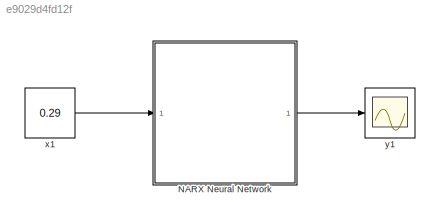
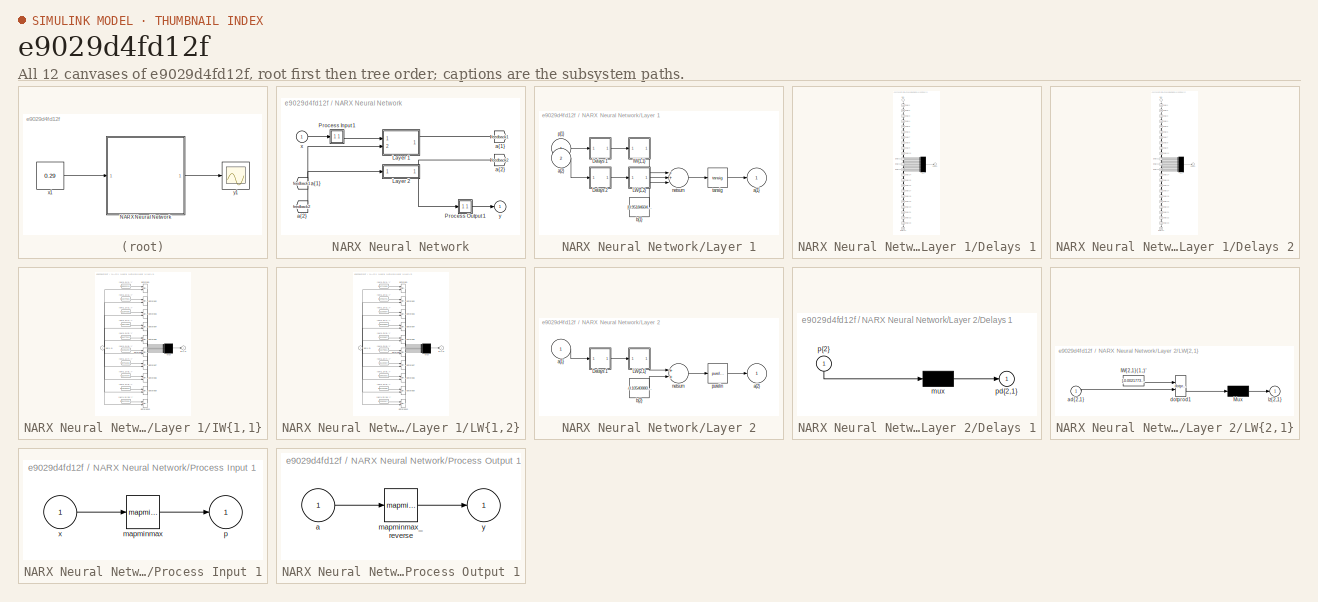
[diagram: thumbnail index - all 12 canvases of the model, root first then tree order]
MODEL slx_e9029d4fd12f
KIND model
CONFIG AbsTol = auto
CONFIG EnableMultiTasking = off
CONFIG FixedStep = auto
CONFIG MaxStep = auto
CONFIG MinStep = auto
CONFIG RelTol = 1e-3
CONFIG SampleTimeConstraint = Unconstrained
CONFIG Solver = VariableStepAuto
CONFIG SolverName = VariableStepAuto
CONFIG StartTime = 0.0
CONFIG StopTime = 10.0
BLOCK [SubSystem] NARX Neural Network
  Ports = [1, 1]
  RequestExecContextInheritance = off
BLOCK [From] NARX Neural Network/ a{1} 
  GotoTag = feedback1
BLOCK [From] NARX Neural Network/ a{2} 
  GotoTag = feedback2
BLOCK [SubSystem] NARX Neural Network/Layer 1
  Ports = [2, 1]
  RequestExecContextInheritance = off
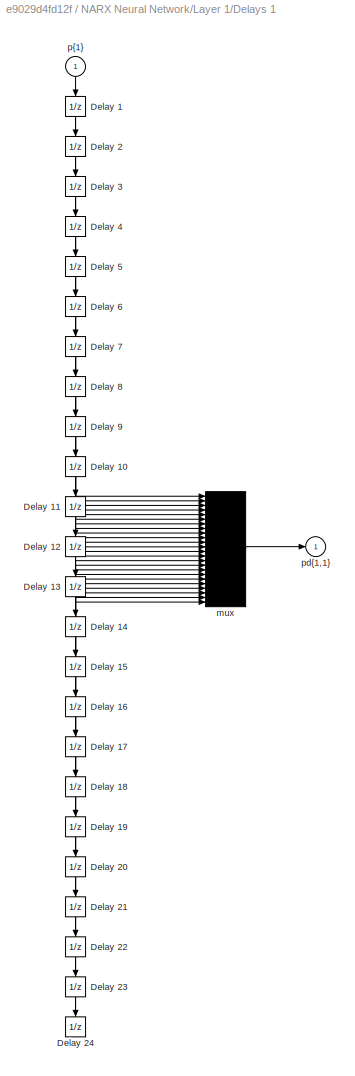
BLOCK [SubSystem] NARX Neural Network/Layer 1/Delays 1
  Ports = [1, 1]
  RequestExecContextInheritance = off
BLOCK [UnitDelay] NARX Neural Network/Layer 1/Delays 1/Delay 1
  InitialCondition = pi_input_1_delayed_1
  SampleTime = 0.01
BLOCK [UnitDelay] NARX Neural Network/Layer 1/Delays 1/Delay 10
  InitialCondition = pi_input_1_delayed_10
  SampleTime = 0.01
BLOCK [UnitDelay] NARX Neural Network/Layer 1/Delays 1/Delay 11
  InitialCondition = pi_input_1_delayed_11
  SampleTime = 0.01
BLOCK [UnitDelay] NARX Neural Network/Layer 1/Delays 1/Delay 12
  InitialCondition = pi_input_1_delayed_12
  SampleTime = 0.01
BLOCK [UnitDelay] NARX Neural Network/Layer 1/Delays 1/Delay 13
  InitialCondition = pi_input_1_delayed_13
  SampleTime = 0.01
BLOCK [UnitDelay] NARX Neural Network/Layer 1/Delays 1/Delay 14
  InitialCondition = pi_input_1_delayed_14
  SampleTime = 0.01
BLOCK [UnitDelay] NARX Neural Network/Layer 1/Delays 1/Delay 15
  InitialCondition = pi_input_1_delayed_15
  SampleTime = 0.01
BLOCK [UnitDelay] NARX Neural Network/Layer 1/Delays 1/Delay 16
  InitialCondition = pi_input_1_delayed_16
  SampleTime = 0.01
BLOCK [UnitDelay] NARX Neural Network/Layer 1/Delays 1/Delay 17
  InitialCondition = pi_input_1_delayed_17
  SampleTime = 0.01
BLOCK [UnitDelay] NARX Neural Network/Layer 1/Delays 1/Delay 18
  InitialCondition = pi_input_1_delayed_18
  SampleTime = 0.01
BLOCK [UnitDelay] NARX Neural Network/Layer 1/Delays 1/Delay 19
  InitialCondition = pi_input_1_delayed_19
  SampleTime = 0.01
BLOCK [UnitDelay] NARX Neural Network/Layer 1/Delays 1/Delay 2
  InitialCondition = pi_input_1_delayed_2
  SampleTime = 0.01
BLOCK [UnitDelay] NARX Neural Network/Layer 1/Delays 1/Delay 20
  InitialCondition = pi_input_1_delayed_20
  SampleTime = 0.01
BLOCK [UnitDelay] NARX Neural Network/Layer 1/Delays 1/Delay 21
  InitialCondition = pi_input_1_delayed_21
  SampleTime = 0.01
BLOCK [UnitDelay] NARX Neural Network/Layer 1/Delays 1/Delay 22
  InitialCondition = pi_input_1_delayed_22
  SampleTime = 0.01
BLOCK [UnitDelay] NARX Neural Network/Layer 1/Delays 1/Delay 23
  InitialCondition = pi_input_1_delayed_23
  SampleTime = 0.01
BLOCK [UnitDelay] NARX Neural Network/Layer 1/Delays 1/Delay 24
  InitialCondition = pi_input_1_delayed_24
  SampleTime = 0.01
BLOCK [UnitDelay] NARX Neural Network/Layer 1/Delays 1/Delay 3
  InitialCondition = pi_input_1_delayed_3
  SampleTime = 0.01
BLOCK [UnitDelay] NARX Neural Network/Layer 1/Delays 1/Delay 4
  InitialCondition = pi_input_1_delayed_4
  SampleTime = 0.01
BLOCK [UnitDelay] NARX Neural Network/Layer 1/Delays 1/Delay 5
  InitialCondition = pi_input_1_delayed_5
  SampleTime = 0.01
BLOCK [UnitDelay] NARX Neural Network/Layer 1/Delays 1/Delay 6
  InitialCondition = pi_input_1_delayed_6
  SampleTime = 0.01
BLOCK [UnitDelay] NARX Neural Network/Layer 1/Delays 1/Delay 7
  InitialCondition = pi_input_1_delayed_7
  SampleTime = 0.01
BLOCK [UnitDelay] NARX Neural Network/Layer 1/Delays 1/Delay 8
  InitialCondition = pi_input_1_delayed_8
  SampleTime = 0.01
BLOCK [UnitDelay] NARX Neural Network/Layer 1/Delays 1/Delay 9
  InitialCondition = pi_input_1_delayed_9
  SampleTime = 0.01
BLOCK [Mux] NARX Neural Network/Layer 1/Delays 1/mux
  Inputs = 24
  Ports = [24, 1]
BLOCK [Outport] NARX Neural Network/Layer 1/Delays 1/pd{1,1}
  IconDisplay = Port number
BLOCK [Inport] NARX Neural Network/Layer 1/Delays 1/p{1}
  IconDisplay = Port number
  PortDimensions = 1
  SampleTime = 0.01
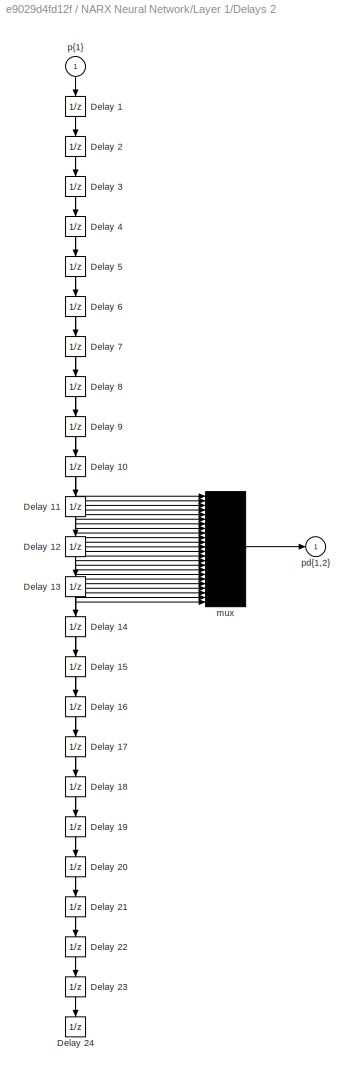
BLOCK [SubSystem] NARX Neural Network/Layer 1/Delays 2
  Ports = [1, 1]
  RequestExecContextInheritance = off
BLOCK [UnitDelay] NARX Neural Network/Layer 1/Delays 2/Delay 1
  InitialCondition = ai_layer_2_delayed_1
  SampleTime = 0.01
BLOCK [UnitDelay] NARX Neural Network/Layer 1/Delays 2/Delay 10
  InitialCondition = ai_layer_2_delayed_10
  SampleTime = 0.01
BLOCK [UnitDelay] NARX Neural Network/Layer 1/Delays 2/Delay 11
  InitialCondition = ai_layer_2_delayed_11
  SampleTime = 0.01
BLOCK [UnitDelay] NARX Neural Network/Layer 1/Delays 2/Delay 12
  InitialCondition = ai_layer_2_delayed_12
  SampleTime = 0.01
BLOCK [UnitDelay] NARX Neural Network/Layer 1/Delays 2/Delay 13
  InitialCondition = ai_layer_2_delayed_13
  SampleTime = 0.01
BLOCK [UnitDelay] NARX Neural Network/Layer 1/Delays 2/Delay 14
  InitialCondition = ai_layer_2_delayed_14
  SampleTime = 0.01
BLOCK [UnitDelay] NARX Neural Network/Layer 1/Delays 2/Delay 15
  InitialCondition = ai_layer_2_delayed_15
  SampleTime = 0.01
BLOCK [UnitDelay] NARX Neural Network/Layer 1/Delays 2/Delay 16
  InitialCondition = ai_layer_2_delayed_16
  SampleTime = 0.01
BLOCK [UnitDelay] NARX Neural Network/Layer 1/Delays 2/Delay 17
  InitialCondition = ai_layer_2_delayed_17
  SampleTime = 0.01
BLOCK [UnitDelay] NARX Neural Network/Layer 1/Delays 2/Delay 18
  InitialCondition = ai_layer_2_delayed_18
  SampleTime = 0.01
BLOCK [UnitDelay] NARX Neural Network/Layer 1/Delays 2/Delay 19
  InitialCondition = ai_layer_2_delayed_19
  SampleTime = 0.01
BLOCK [UnitDelay] NARX Neural Network/Layer 1/Delays 2/Delay 2
  InitialCondition = ai_layer_2_delayed_2
  SampleTime = 0.01
BLOCK [UnitDelay] NARX Neural Network/Layer 1/Delays 2/Delay 20
  InitialCondition = ai_layer_2_delayed_20
  SampleTime = 0.01
BLOCK [UnitDelay] NARX Neural Network/Layer 1/Delays 2/Delay 21
  InitialCondition = ai_layer_2_delayed_21
  SampleTime = 0.01
BLOCK [UnitDelay] NARX Neural Network/Layer 1/Delays 2/Delay 22
  InitialCondition = ai_layer_2_delayed_22
  SampleTime = 0.01
BLOCK [UnitDelay] NARX Neural Network/Layer 1/Delays 2/Delay 23
  InitialCondition = ai_layer_2_delayed_23
  SampleTime = 0.01
BLOCK [UnitDelay] NARX Neural Network/Layer 1/Delays 2/Delay 24
  InitialCondition = ai_layer_2_delayed_24
  SampleTime = 0.01
BLOCK [UnitDelay] NARX Neural Network/Layer 1/Delays 2/Delay 3
  InitialCondition = ai_layer_2_delayed_3
  SampleTime = 0.01
BLOCK [UnitDelay] NARX Neural Network/Layer 1/Delays 2/Delay 4
  InitialCondition = ai_layer_2_delayed_4
  SampleTime = 0.01
BLOCK [UnitDelay] NARX Neural Network/Layer 1/Delays 2/Delay 5
  InitialCondition = ai_layer_2_delayed_5
  SampleTime = 0.01
BLOCK [UnitDelay] NARX Neural Network/Layer 1/Delays 2/Delay 6
  InitialCondition = ai_layer_2_delayed_6
  SampleTime = 0.01
BLOCK [UnitDelay] NARX Neural Network/Layer 1/Delays 2/Delay 7
  InitialCondition = ai_layer_2_delayed_7
  SampleTime = 0.01
BLOCK [UnitDelay] NARX Neural Network/Layer 1/Delays 2/Delay 8
  InitialCondition = ai_layer_2_delayed_8
  SampleTime = 0.01
BLOCK [UnitDelay] NARX Neural Network/Layer 1/Delays 2/Delay 9
  InitialCondition = ai_layer_2_delayed_9
  SampleTime = 0.01
BLOCK [Mux] NARX Neural Network/Layer 1/Delays 2/mux
  Inputs = 24
  Ports = [24, 1]
BLOCK [Outport] NARX Neural Network/Layer 1/Delays 2/pd{1,2}
  IconDisplay = Port number
BLOCK [Inport] NARX Neural Network/Layer 1/Delays 2/p{1}
  IconDisplay = Port number
  PortDimensions = 1
  SampleTime = 0.01
BLOCK [SubSystem] NARX Neural Network/Layer 1/IW{1,1}
  Ports = [1, 1]
  RequestExecContextInheritance = off
BLOCK [Constant] NARX Neural Network/Layer 1/IW{1,1}/IW{1,1}(1,:)'
  Value = [0.0856013424029176406282459765861858613789081573486328125;-0.00724075975298437042593224788333827746100723743438720703125;-0.07152485709570909067078758880597888492047786712646484375;0.109887249497308270296258569942438043653964996337890625;-0.45763899483971359760658970117219723761081695556640625;-0.056271085373807365470621988379207323305308818817138671875;-0.4607867471702274952960465270734857767820...<+1005ch>
BLOCK [Constant] NARX Neural Network/Layer 1/IW{1,1}/IW{1,1}(10,:)'
  Value = [0.3547532661764705164131328274379484355449676513671875;0.152443026928926472773895284262835048139095306396484375;-0.136487933283362894432144685197272337973117828369140625;0.10678252553916163514191595140800927765667438507080078125;0.0482418441155837707245979117942624725401401519775390625;0.1443062859700950661956397880203439854085445404052734375;-0.185395275683667398736176323836843948811292648315429...<+996ch>
BLOCK [Constant] NARX Neural Network/Layer 1/IW{1,1}/IW{1,1}(2,:)'
  Value = [0.1314782142310824408770741911212098784744739532470703125;-0.06602806215521705990312284484389238059520721435546875;-0.08331722409706643350801869019051082432270050048828125;-0.01370571109373649489049373784155250177718698978424072265625;-0.093484082697909476333819611681974492967128753662109375;-0.1094986708988327783753646826880867592990398406982421875;0.105448038108672315082969817012781277298927307...<+1024ch>
BLOCK [Constant] NARX Neural Network/Layer 1/IW{1,1}/IW{1,1}(3,:)'
  Value = [-0.1904390244088463024496604703017510473728179931640625;0.32277468671515896492252295502112247049808502197265625;-0.1413383601039004400234944114345125854015350341796875;0.025046703114108871679466261639390722848474979400634765625;0.083767870303556646316422984455130062997341156005859375;-0.1428926716776221794713563895129482261836528778076171875;0.25435295990541989530342448233568575233221054077148437...<+1009ch>
BLOCK [Constant] NARX Neural Network/Layer 1/IW{1,1}/IW{1,1}(4,:)'
  Value = [-0.25776667125185659390496084597543813288211822509765625;0.18605250163681485986444386071525514125823974609375;0.0028550010644964635316001011489106531371362507343292236328125;0.0203905898558421928845607595803812728263437747955322265625;0.1870760937503544163451607573733781464397907257080078125;0.08515024159120553048918367267106077633798122406005859375;-0.04788282636194560182296697803394636139273643...<+1037ch>
BLOCK [Constant] NARX Neural Network/Layer 1/IW{1,1}/IW{1,1}(5,:)'
  Value = [0.416775139314480458363476600425201468169689178466796875;0.39751720099839860100843225154676474630832672119140625;0.1551138220995464667151253479460137896239757537841796875;-0.331250020719877247277196374852792359888553619384765625;-0.27679367439394420014053821432753466069698333740234375;0.44088978376192933250621308616246096789836883544921875;0.15726563417912509112994712268118746578693389892578125;0...<+984ch>
BLOCK [Constant] NARX Neural Network/Layer 1/IW{1,1}/IW{1,1}(6,:)'
  Value = [-0.10562023007579444955350567170171416364610195159912109375;0.08710347211597228855861629881474073044955730438232421875;0.0103552165834083498285878022215911187231540679931640625;0.0133263718229124743241964523576825740747153759002685546875;0.09977299095127910300018214684314443729817867279052734375;0.060971041536120131054676818394000292755663394927978515625;-0.051380690474474167983576222695774049498...<+1051ch>
BLOCK [Constant] NARX Neural Network/Layer 1/IW{1,1}/IW{1,1}(7,:)'
  Value = [-0.07518183741287305654754646866422262974083423614501953125;0.26766528541023404397236618024180643260478973388671875;0.1971267039078361538173567168996669352054595947265625;-0.073796140935324106013837308637448586523532867431640625;-0.2732172730282471651008791013737209141254425048828125;-0.03493153163277999684321883933080243878066539764404296875;0.152184171093630471460755870793946087360382080078125;...<+974ch>
BLOCK [Constant] NARX Neural Network/Layer 1/IW{1,1}/IW{1,1}(8,:)'
  Value = [-0.16707041639109820874153911063331179320812225341796875;-0.07480837835333513374802549833475495688617229461669921875;0.1953870805217233497241835493696271441876888275146484375;-0.0130386788139441565925746857601552619598805904388427734375;-0.266087549661121414157349818196962587535381317138671875;0.004006191389652560309875273247826044098474085330963134765625;-0.24479439072991598935757906474464107304...<+1011ch>
BLOCK [Constant] NARX Neural Network/Layer 1/IW{1,1}/IW{1,1}(9,:)'
  Value = [0.136482940865095991878064296543016098439693450927734375;-0.1284199489815281147730985367161338217556476593017578125;-0.00610790569601059492310657361713310820050537586212158203125;-0.01117936666976179251042911033664495334960520267486572265625;-0.127830392736199616177117377446847967803478240966796875;-0.05165266251545819198298659102874808013439178466796875;0.0260563084036608307025861819283818476833...<+1037ch>
BLOCK [Mux] NARX Neural Network/Layer 1/IW{1,1}/Mux
  Inputs = 10
  Ports = [10, 1]
BLOCK [Reference] NARX Neural Network/Layer 1/IW{1,1}/dotprod1  REF=neural/Weight Functions/dotprod
  Ports = [2, 1]
  SourceBlock = neural/Weight Functions/dotprod
  SourceProductBaseCode = Missing
  SourceProductName = MATLAB Runtime - Deep Learning Toolbox
  SourceType = DOTPROD
BLOCK [Reference] NARX Neural Network/Layer 1/IW{1,1}/dotprod10  REF=neural/Weight Functions/dotprod
  Ports = [2, 1]
  SourceBlock = neural/Weight Functions/dotprod
  SourceProductBaseCode = Missing
  SourceProductName = MATLAB Runtime - Deep Learning Toolbox
  SourceType = DOTPROD
BLOCK [Reference] NARX Neural Network/Layer 1/IW{1,1}/dotprod2  REF=neural/Weight Functions/dotprod
  Ports = [2, 1]
  SourceBlock = neural/Weight Functions/dotprod
  SourceProductBaseCode = Missing
  SourceProductName = MATLAB Runtime - Deep Learning Toolbox
  SourceType = DOTPROD
BLOCK [Reference] NARX Neural Network/Layer 1/IW{1,1}/dotprod3  REF=neural/Weight Functions/dotprod
  Ports = [2, 1]
  SourceBlock = neural/Weight Functions/dotprod
  SourceProductBaseCode = Missing
  SourceProductName = MATLAB Runtime - Deep Learning Toolbox
  SourceType = DOTPROD
BLOCK [Reference] NARX Neural Network/Layer 1/IW{1,1}/dotprod4  REF=neural/Weight Functions/dotprod
  Ports = [2, 1]
  SourceBlock = neural/Weight Functions/dotprod
  SourceProductBaseCode = Missing
  SourceProductName = MATLAB Runtime - Deep Learning Toolbox
  SourceType = DOTPROD
BLOCK [Reference] NARX Neural Network/Layer 1/IW{1,1}/dotprod5  REF=neural/Weight Functions/dotprod
  Ports = [2, 1]
  SourceBlock = neural/Weight Functions/dotprod
  SourceProductBaseCode = Missing
  SourceProductName = MATLAB Runtime - Deep Learning Toolbox
  SourceType = DOTPROD
BLOCK [Reference] NARX Neural Network/Layer 1/IW{1,1}/dotprod6  REF=neural/Weight Functions/dotprod
  Ports = [2, 1]
  SourceBlock = neural/Weight Functions/dotprod
  SourceProductBaseCode = Missing
  SourceProductName = MATLAB Runtime - Deep Learning Toolbox
  SourceType = DOTPROD
BLOCK [Reference] NARX Neural Network/Layer 1/IW{1,1}/dotprod7  REF=neural/Weight Functions/dotprod
  Ports = [2, 1]
  SourceBlock = neural/Weight Functions/dotprod
  SourceProductBaseCode = Missing
  SourceProductName = MATLAB Runtime - Deep Learning Toolbox
  SourceType = DOTPROD
BLOCK [Reference] NARX Neural Network/Layer 1/IW{1,1}/dotprod8  REF=neural/Weight Functions/dotprod
  Ports = [2, 1]
  SourceBlock = neural/Weight Functions/dotprod
  SourceProductBaseCode = Missing
  SourceProductName = MATLAB Runtime - Deep Learning Toolbox
  SourceType = DOTPROD
BLOCK [Reference] NARX Neural Network/Layer 1/IW{1,1}/dotprod9  REF=neural/Weight Functions/dotprod
  Ports = [2, 1]
  SourceBlock = neural/Weight Functions/dotprod
  SourceProductBaseCode = Missing
  SourceProductName = MATLAB Runtime - Deep Learning Toolbox
  SourceType = DOTPROD
BLOCK [Outport] NARX Neural Network/Layer 1/IW{1,1}/iz{1,1}
  IconDisplay = Port number
BLOCK [Inport] NARX Neural Network/Layer 1/IW{1,1}/pd{1,1}
  IconDisplay = Port number
  PortDimensions = 24
  SampleTime = 0.01
BLOCK [SubSystem] NARX Neural Network/Layer 1/LW{1,2}
  Ports = [1, 1]
  RequestExecContextInheritance = off
BLOCK [Constant] NARX Neural Network/Layer 1/LW{1,2}/IW{1,2}(1,:)'
  Value = [0.16719380976165931773635975332581438124179840087890625;-0.29595688487026017288172852204297669231891632080078125;0.1863222926850476302007564299856312572956085205078125;0.27386028047363064619190708981477655470371246337890625;-0.2899890011031249770212525618262588977813720703125;-0.0825837506160481960026942260810756124556064605712890625;0.0894755622583799647973279434154392220079898834228515625;-0.17...<+984ch>
BLOCK [Constant] NARX Neural Network/Layer 1/LW{1,2}/IW{1,2}(10,:)'
  Value = [0.330828172628473027305773257467080838978290557861328125;0.01215401509637588362000570896270801313221454620361328125;-0.29808076621597134892027725072694011032581329345703125;0.29703641969483729479151179475593380630016326904296875;0.341911490275907947733458058792166411876678466796875;-0.259970191873058087406178628953057341277599334716796875;-0.2352455394832943247340750758667127229273319244384765625...<+994ch>
BLOCK [Constant] NARX Neural Network/Layer 1/LW{1,2}/IW{1,2}(2,:)'
  Value = [0.194557216657813836224732995106023736298084259033203125;-0.09979712089550400733184432056077639572322368621826171875;-0.313679573067478345560488151022582314908504486083984375;-0.046066962851501087883310248116686125285923480987548828125;0.010568221146714830427359999021064140833914279937744140625;0.246117499643645931683977323700673878192901611328125;0.03296857123568897041110403733910061419010162353...<+994ch>
BLOCK [Constant] NARX Neural Network/Layer 1/LW{1,2}/IW{1,2}(3,:)'
  Value = [-0.159080776117310362938184198355884291231632232666015625;0.1597929117548015087724166960470029152929782867431640625;0.191390104920643955299652816393063403666019439697265625;-0.0884177914222953609257871221416280604898929595947265625;-0.2368387914900959845265759895482915453612804412841796875;-0.256449769799526439140180400499957613646984100341796875;0.113733493301032884126300359639571979641914367675...<+992ch>
BLOCK [Constant] NARX Neural Network/Layer 1/LW{1,2}/IW{1,2}(4,:)'
  Value = [-0.525980040362222123206947799189947545528411865234375;-0.0830137122776781755106867422000505030155181884765625;0.07090015426237260276476348508367664180696010589599609375;-0.10163813837379147286821279294599662534892559051513671875;0.1546426069610497278095095907701761461794376373291015625;-0.087854119338177161235847734133130870759487152099609375;-0.05708933035396236005398762358709063846617937088012...<+987ch>
BLOCK [Constant] NARX Neural Network/Layer 1/LW{1,2}/IW{1,2}(5,:)'
  Value = [-0.12208074743421364061202183393106679432094097137451171875;0.29388074405652286902324021866661496460437774658203125;0.2406702037109282599214310494062374345958232879638671875;0.2034389096992790524343064362255972810089588165283203125;-0.0306505279354480804354654566168392193503677845001220703125;-0.311269411451220445741228104452602565288543701171875;0.299439336989607063355123273140634410083293914794...<+1003ch>
BLOCK [Constant] NARX Neural Network/Layer 1/LW{1,2}/IW{1,2}(6,:)'
  Value = [0.1317981124523306679652279171932605095207691192626953125;0.139616783649259390553964976788847707211971282958984375;-0.154188266976704013710985918805818073451519012451171875;0.03790702193036389611169312274796538986265659332275390625;0.218546507115703836365838697020080871880054473876953125;0.0005657636662507949283640318327570639667101204395294189453125;-0.0088541900755608003020791230142094718758016...<+1015ch>
BLOCK [Constant] NARX Neural Network/Layer 1/LW{1,2}/IW{1,2}(7,:)'
  Value = [-0.11303570273512290877970798419482889585196971893310546875;-0.257998930224741462868820462972507812082767486572265625;0.09199722198758868152435042020442779175937175750732421875;0.028278556130368205645542190040941932238638401031494140625;0.0239445593624497722606836447312161908484995365142822265625;-0.337391999688266219781240806696587242186069488525390625;-0.1557522469637331319347595126600936055183...<+985ch>
BLOCK [Constant] NARX Neural Network/Layer 1/LW{1,2}/IW{1,2}(8,:)'
  Value = [0.295639154767277700930350192720652557909488677978515625;0.1714104370645199992839735614325036294758319854736328125;-0.018462795282217780989952871095738373696804046630859375;0.21073190990629930841038230937556363642215728759765625;0.0138081528030142876295460752089638845063745975494384765625;0.25594453769690017619353739064536057412624359130859375;-0.21738009466559962690190843659365782514214515686035...<+979ch>
BLOCK [Constant] NARX Neural Network/Layer 1/LW{1,2}/IW{1,2}(9,:)'
  Value = [0.0134948507624067133570111565177285228855907917022705078125;-0.129864255649513371526637683928129263222217559814453125;-0.3249923229619093856257450170232914388179779052734375;0.230436343214279026891944113231147639453411102294921875;0.08185447772890930284717114773229695856571197509765625;-0.166845118220377230944251323307980783283710479736328125;0.187812583559288315271373903669882565736770629882812...<+991ch>
BLOCK [Mux] NARX Neural Network/Layer 1/LW{1,2}/Mux
  Inputs = 10
  Ports = [10, 1]
BLOCK [Inport] NARX Neural Network/Layer 1/LW{1,2}/ad{1,2}
  IconDisplay = Port number
  PortDimensions = 24
  SampleTime = 0.01
BLOCK [Reference] NARX Neural Network/Layer 1/LW{1,2}/dotprod1  REF=neural/Weight Functions/dotprod
  Ports = [2, 1]
  SourceBlock = neural/Weight Functions/dotprod
  SourceProductBaseCode = Missing
  SourceProductName = MATLAB Runtime - Deep Learning Toolbox
  SourceType = DOTPROD
BLOCK [Reference] NARX Neural Network/Layer 1/LW{1,2}/dotprod10  REF=neural/Weight Functions/dotprod
  Ports = [2, 1]
  SourceBlock = neural/Weight Functions/dotprod
  SourceProductBaseCode = Missing
  SourceProductName = MATLAB Runtime - Deep Learning Toolbox
  SourceType = DOTPROD
BLOCK [Reference] NARX Neural Network/Layer 1/LW{1,2}/dotprod2  REF=neural/Weight Functions/dotprod
  Ports = [2, 1]
  SourceBlock = neural/Weight Functions/dotprod
  SourceProductBaseCode = Missing
  SourceProductName = MATLAB Runtime - Deep Learning Toolbox
  SourceType = DOTPROD
BLOCK [Reference] NARX Neural Network/Layer 1/LW{1,2}/dotprod3  REF=neural/Weight Functions/dotprod
  Ports = [2, 1]
  SourceBlock = neural/Weight Functions/dotprod
  SourceProductBaseCode = Missing
  SourceProductName = MATLAB Runtime - Deep Learning Toolbox
  SourceType = DOTPROD
BLOCK [Reference] NARX Neural Network/Layer 1/LW{1,2}/dotprod4  REF=neural/Weight Functions/dotprod
  Ports = [2, 1]
  SourceBlock = neural/Weight Functions/dotprod
  SourceProductBaseCode = Missing
  SourceProductName = MATLAB Runtime - Deep Learning Toolbox
  SourceType = DOTPROD
BLOCK [Reference] NARX Neural Network/Layer 1/LW{1,2}/dotprod5  REF=neural/Weight Functions/dotprod
  Ports = [2, 1]
  SourceBlock = neural/Weight Functions/dotprod
  SourceProductBaseCode = Missing
  SourceProductName = MATLAB Runtime - Deep Learning Toolbox
  SourceType = DOTPROD
BLOCK [Reference] NARX Neural Network/Layer 1/LW{1,2}/dotprod6  REF=neural/Weight Functions/dotprod
  Ports = [2, 1]
  SourceBlock = neural/Weight Functions/dotprod
  SourceProductBaseCode = Missing
  SourceProductName = MATLAB Runtime - Deep Learning Toolbox
  SourceType = DOTPROD
BLOCK [Reference] NARX Neural Network/Layer 1/LW{1,2}/dotprod7  REF=neural/Weight Functions/dotprod
  Ports = [2, 1]
  SourceBlock = neural/Weight Functions/dotprod
  SourceProductBaseCode = Missing
  SourceProductName = MATLAB Runtime - Deep Learning Toolbox
  SourceType = DOTPROD
BLOCK [Reference] NARX Neural Network/Layer 1/LW{1,2}/dotprod8  REF=neural/Weight Functions/dotprod
  Ports = [2, 1]
  SourceBlock = neural/Weight Functions/dotprod
  SourceProductBaseCode = Missing
  SourceProductName = MATLAB Runtime - Deep Learning Toolbox
  SourceType = DOTPROD
BLOCK [Reference] NARX Neural Network/Layer 1/LW{1,2}/dotprod9  REF=neural/Weight Functions/dotprod
  Ports = [2, 1]
  SourceBlock = neural/Weight Functions/dotprod
  SourceProductBaseCode = Missing
  SourceProductName = MATLAB Runtime - Deep Learning Toolbox
  SourceType = DOTPROD
BLOCK [Outport] NARX Neural Network/Layer 1/LW{1,2}/lz{1,2}
  IconDisplay = Port number
BLOCK [Outport] NARX Neural Network/Layer 1/a{1}
  IconDisplay = Port number
  InitialOutput = [0;0;0;0;0;0;0;0;0;0]
BLOCK [Inport] NARX Neural Network/Layer 1/a{2} 
  IconDisplay = Port number
  Port = 2
  PortDimensions = 1
  SampleTime = 0.01
BLOCK [Constant] NARX Neural Network/Layer 1/b{1}
  Value = [0.9518460464636280260464218372362665832042694091796875;1.2895375933274080271218053894699551165103912353515625;-1.0042287109410328316272398296860046684741973876953125;-0.1894113471004665871788574804668314754962921142578125;-0.39625740271674214643127243107301183044910430908203125;0.0603250268173138037841596315047354437410831451416015625;-0.30611624242746227064770891956868581473827362060546875;0.799...<+158ch>
BLOCK [Sum] NARX Neural Network/Layer 1/netsum
  Inputs = 3
  Ports = [3, 1]
BLOCK [Inport] NARX Neural Network/Layer 1/p{1}
  IconDisplay = Port number
  PortDimensions = 1
  SampleTime = 0.01
BLOCK [Reference] NARX Neural Network/Layer 1/tansig  REF=neural/Transfer Functions/tansig
  Ports = [1, 1]
  SourceBlock = neural/Transfer Functions/tansig
  SourceProductBaseCode = Missing
  SourceProductName = MATLAB Runtime - Deep Learning Toolbox
  SourceType = TANSIG
BLOCK [SubSystem] NARX Neural Network/Layer 2
  Ports = [1, 1]
  RequestExecContextInheritance = off
BLOCK [SubSystem] NARX Neural Network/Layer 2/Delays 1
  Ports = [1, 1]
  RequestExecContextInheritance = off
BLOCK [Mux] NARX Neural Network/Layer 2/Delays 1/mux
  Inputs = 1
  Ports = [1, 1]
BLOCK [Outport] NARX Neural Network/Layer 2/Delays 1/pd{2,1}
  IconDisplay = Port number
BLOCK [Inport] NARX Neural Network/Layer 2/Delays 1/p{2}
  IconDisplay = Port number
  PortDimensions = 10
  SampleTime = 0.01
BLOCK [SubSystem] NARX Neural Network/Layer 2/LW{2,1}
  Ports = [1, 1]
  RequestExecContextInheritance = off
BLOCK [Constant] NARX Neural Network/Layer 2/LW{2,1}/IW{2,1}(1,:)'
  Value = [-0.002177335779139029196815879885207323241047561168670654296875;-0.68638914202570677769443818760919384658336639404296875;0.3822913233176155056725065151113085448741912841796875;-0.9326531927067545080234367560478858649730682373046875;1.016614265903826620773831024280298152007162570953369140625e-05;1.116300742682813318396028989809565246105194091796875;-0.0002175497985567739430996098137782723824784625...<+196ch>
BLOCK [Mux] NARX Neural Network/Layer 2/LW{2,1}/Mux
  Inputs = 1
  Ports = [1, 1]
BLOCK [Inport] NARX Neural Network/Layer 2/LW{2,1}/ad{2,1}
  IconDisplay = Port number
  PortDimensions = 10
  SampleTime = 0.01
BLOCK [Reference] NARX Neural Network/Layer 2/LW{2,1}/dotprod1  REF=neural/Weight Functions/dotprod
  Ports = [2, 1]
  SourceBlock = neural/Weight Functions/dotprod
  SourceProductBaseCode = Missing
  SourceProductName = MATLAB Runtime - Deep Learning Toolbox
  SourceType = DOTPROD
BLOCK [Outport] NARX Neural Network/Layer 2/LW{2,1}/lz{2,1}
  IconDisplay = Port number
BLOCK [Inport] NARX Neural Network/Layer 2/a{1} 
  IconDisplay = Port number
  PortDimensions = 10
  SampleTime = 0.01
BLOCK [Outport] NARX Neural Network/Layer 2/a{2}
  IconDisplay = Port number
  InitialOutput = 0
BLOCK [Constant] NARX Neural Network/Layer 2/b{2}
  Value = -0.10540880246124766095316971359352464787662029266357421875
BLOCK [Sum] NARX Neural Network/Layer 2/netsum
  Inputs = 2
  Ports = [2, 1]
BLOCK [Reference] NARX Neural Network/Layer 2/purelin  REF=neural/Transfer Functions/purelin
  Ports = [1, 1]
  SourceBlock = neural/Transfer Functions/purelin
  SourceProductBaseCode = Missing
  SourceProductName = MATLAB Runtime - Deep Learning Toolbox
  SourceType = PURELIN
BLOCK [SubSystem] NARX Neural Network/Process Input 1
  Ports = [1, 1]
  RequestExecContextInheritance = off
BLOCK [Reference] NARX Neural Network/Process Input 1/mapminmax  REF=neural/Processing Functions/mapminmax
  Ports = [1, 1]
  SourceBlock = neural/Processing Functions/mapminmax
  SourceProductBaseCode = Missing
  SourceProductName = MATLAB Runtime - Deep Learning Toolbox
  SourceType = MAPMINMAX Preprocess
BLOCK [Outport] NARX Neural Network/Process Input 1/p
  IconDisplay = Port number
  PortDimensions = 1
  SampleTime = 0.01
BLOCK [Inport] NARX Neural Network/Process Input 1/x
  IconDisplay = Port number
  PortDimensions = 1
  SampleTime = 0.01
BLOCK [SubSystem] NARX Neural Network/Process Output 1
  Ports = [1, 1]
  RequestExecContextInheritance = off
BLOCK [Inport] NARX Neural Network/Process Output 1/a
  IconDisplay = Port number
  PortDimensions = 1
  SampleTime = 0.01
BLOCK [Reference] NARX Neural Network/Process Output 1/mapminmax_reverse  REF=neural/Processing Functions/mapminmax_reverse
  Ports = [1, 1]
  SourceBlock = neural/Processing Functions/mapminmax_reverse
  SourceProductBaseCode = Missing
  SourceProductName = MATLAB Runtime - Deep Learning Toolbox
  SourceType = MAPMINMAX Reverse Process
BLOCK [Outport] NARX Neural Network/Process Output 1/y
  IconDisplay = Port number
  PortDimensions = 1
  SampleTime = 0.01
BLOCK [Goto] NARX Neural Network/a{1}
  GotoTag = feedback1
BLOCK [Goto] NARX Neural Network/a{2}
  GotoTag = feedback2
BLOCK [Inport] NARX Neural Network/x
  IconDisplay = Port number
  PortDimensions = 1
  SampleTime = 0.01
BLOCK [Outport] NARX Neural Network/y
  IconDisplay = Port number
  InitialOutput = 0
BLOCK [Constant] x1
  SampleTime = 0.01
  Value = 0.29
BLOCK [Scope] y1
  Floating = off
  NumInputPorts = 1
  Ports = [1]
LINE NARX Neural Network/ a{1} :1 -> NARX Neural Network/Layer 2:1
LINE NARX Neural Network/ a{2} :1 -> NARX Neural Network/Layer 1:2
NET NARX Neural Network/Layer 1/Delays 1/Delay 10:1 -> NARX Neural Network/Layer 1/Delays 1/Delay 11:1, NARX Neural Network/Layer 1/Delays 1/mux:10
NET NARX Neural Network/Layer 1/Delays 1/Delay 11:1 -> NARX Neural Network/Layer 1/Delays 1/Delay 12:1, NARX Neural Network/Layer 1/Delays 1/mux:11
NET NARX Neural Network/Layer 1/Delays 1/Delay 12:1 -> NARX Neural Network/Layer 1/Delays 1/Delay 13:1, NARX Neural Network/Layer 1/Delays 1/mux:12
NET NARX Neural Network/Layer 1/Delays 1/Delay 13:1 -> NARX Neural Network/Layer 1/Delays 1/Delay 14:1, NARX Neural Network/Layer 1/Delays 1/mux:13
NET NARX Neural Network/Layer 1/Delays 1/Delay 14:1 -> NARX Neural Network/Layer 1/Delays 1/Delay 15:1, NARX Neural Network/Layer 1/Delays 1/mux:14
NET NARX Neural Network/Layer 1/Delays 1/Delay 15:1 -> NARX Neural Network/Layer 1/Delays 1/Delay 16:1, NARX Neural Network/Layer 1/Delays 1/mux:15
NET NARX Neural Network/Layer 1/Delays 1/Delay 16:1 -> NARX Neural Network/Layer 1/Delays 1/Delay 17:1, NARX Neural Network/Layer 1/Delays 1/mux:16
NET NARX Neural Network/Layer 1/Delays 1/Delay 17:1 -> NARX Neural Network/Layer 1/Delays 1/Delay 18:1, NARX Neural Network/Layer 1/Delays 1/mux:17
NET NARX Neural Network/Layer 1/Delays 1/Delay 18:1 -> NARX Neural Network/Layer 1/Delays 1/Delay 19:1, NARX Neural Network/Layer 1/Delays 1/mux:18
NET NARX Neural Network/Layer 1/Delays 1/Delay 19:1 -> NARX Neural Network/Layer 1/Delays 1/Delay 20:1, NARX Neural Network/Layer 1/Delays 1/mux:19
NET NARX Neural Network/Layer 1/Delays 1/Delay 1:1 -> NARX Neural Network/Layer 1/Delays 1/Delay 2:1, NARX Neural Network/Layer 1/Delays 1/mux:1
NET NARX Neural Network/Layer 1/Delays 1/Delay 20:1 -> NARX Neural Network/Layer 1/Delays 1/Delay 21:1, NARX Neural Network/Layer 1/Delays 1/mux:20
NET NARX Neural Network/Layer 1/Delays 1/Delay 21:1 -> NARX Neural Network/Layer 1/Delays 1/Delay 22:1, NARX Neural Network/Layer 1/Delays 1/mux:21
NET NARX Neural Network/Layer 1/Delays 1/Delay 22:1 -> NARX Neural Network/Layer 1/Delays 1/Delay 23:1, NARX Neural Network/Layer 1/Delays 1/mux:22
NET NARX Neural Network/Layer 1/Delays 1/Delay 23:1 -> NARX Neural Network/Layer 1/Delays 1/Delay 24:1, NARX Neural Network/Layer 1/Delays 1/mux:23
LINE NARX Neural Network/Layer 1/Delays 1/Delay 24:1 -> NARX Neural Network/Layer 1/Delays 1/mux:24
NET NARX Neural Network/Layer 1/Delays 1/Delay 2:1 -> NARX Neural Network/Layer 1/Delays 1/Delay 3:1, NARX Neural Network/Layer 1/Delays 1/mux:2
NET NARX Neural Network/Layer 1/Delays 1/Delay 3:1 -> NARX Neural Network/Layer 1/Delays 1/Delay 4:1, NARX Neural Network/Layer 1/Delays 1/mux:3
NET NARX Neural Network/Layer 1/Delays 1/Delay 4:1 -> NARX Neural Network/Layer 1/Delays 1/Delay 5:1, NARX Neural Network/Layer 1/Delays 1/mux:4
NET NARX Neural Network/Layer 1/Delays 1/Delay 5:1 -> NARX Neural Network/Layer 1/Delays 1/Delay 6:1, NARX Neural Network/Layer 1/Delays 1/mux:5
NET NARX Neural Network/Layer 1/Delays 1/Delay 6:1 -> NARX Neural Network/Layer 1/Delays 1/Delay 7:1, NARX Neural Network/Layer 1/Delays 1/mux:6
NET NARX Neural Network/Layer 1/Delays 1/Delay 7:1 -> NARX Neural Network/Layer 1/Delays 1/Delay 8:1, NARX Neural Network/Layer 1/Delays 1/mux:7
NET NARX Neural Network/Layer 1/Delays 1/Delay 8:1 -> NARX Neural Network/Layer 1/Delays 1/Delay 9:1, NARX Neural Network/Layer 1/Delays 1/mux:8
NET NARX Neural Network/Layer 1/Delays 1/Delay 9:1 -> NARX Neural Network/Layer 1/Delays 1/Delay 10:1, NARX Neural Network/Layer 1/Delays 1/mux:9
LINE NARX Neural Network/Layer 1/Delays 1/mux:1 -> NARX Neural Network/Layer 1/Delays 1/pd{1,1}:1
LINE NARX Neural Network/Layer 1/Delays 1/p{1}:1 -> NARX Neural Network/Layer 1/Delays 1/Delay 1:1
LINE NARX Neural Network/Layer 1/Delays 1:1 -> NARX Neural Network/Layer 1/IW{1,1}:1
NET NARX Neural Network/Layer 1/Delays 2/Delay 10:1 -> NARX Neural Network/Layer 1/Delays 2/Delay 11:1, NARX Neural Network/Layer 1/Delays 2/mux:10
NET NARX Neural Network/Layer 1/Delays 2/Delay 11:1 -> NARX Neural Network/Layer 1/Delays 2/Delay 12:1, NARX Neural Network/Layer 1/Delays 2/mux:11
NET NARX Neural Network/Layer 1/Delays 2/Delay 12:1 -> NARX Neural Network/Layer 1/Delays 2/Delay 13:1, NARX Neural Network/Layer 1/Delays 2/mux:12
NET NARX Neural Network/Layer 1/Delays 2/Delay 13:1 -> NARX Neural Network/Layer 1/Delays 2/Delay 14:1, NARX Neural Network/Layer 1/Delays 2/mux:13
NET NARX Neural Network/Layer 1/Delays 2/Delay 14:1 -> NARX Neural Network/Layer 1/Delays 2/Delay 15:1, NARX Neural Network/Layer 1/Delays 2/mux:14
NET NARX Neural Network/Layer 1/Delays 2/Delay 15:1 -> NARX Neural Network/Layer 1/Delays 2/Delay 16:1, NARX Neural Network/Layer 1/Delays 2/mux:15
NET NARX Neural Network/Layer 1/Delays 2/Delay 16:1 -> NARX Neural Network/Layer 1/Delays 2/Delay 17:1, NARX Neural Network/Layer 1/Delays 2/mux:16
NET NARX Neural Network/Layer 1/Delays 2/Delay 17:1 -> NARX Neural Network/Layer 1/Delays 2/Delay 18:1, NARX Neural Network/Layer 1/Delays 2/mux:17
NET NARX Neural Network/Layer 1/Delays 2/Delay 18:1 -> NARX Neural Network/Layer 1/Delays 2/Delay 19:1, NARX Neural Network/Layer 1/Delays 2/mux:18
NET NARX Neural Network/Layer 1/Delays 2/Delay 19:1 -> NARX Neural Network/Layer 1/Delays 2/Delay 20:1, NARX Neural Network/Layer 1/Delays 2/mux:19
NET NARX Neural Network/Layer 1/Delays 2/Delay 1:1 -> NARX Neural Network/Layer 1/Delays 2/Delay 2:1, NARX Neural Network/Layer 1/Delays 2/mux:1
NET NARX Neural Network/Layer 1/Delays 2/Delay 20:1 -> NARX Neural Network/Layer 1/Delays 2/Delay 21:1, NARX Neural Network/Layer 1/Delays 2/mux:20
NET NARX Neural Network/Layer 1/Delays 2/Delay 21:1 -> NARX Neural Network/Layer 1/Delays 2/Delay 22:1, NARX Neural Network/Layer 1/Delays 2/mux:21
NET NARX Neural Network/Layer 1/Delays 2/Delay 22:1 -> NARX Neural Network/Layer 1/Delays 2/Delay 23:1, NARX Neural Network/Layer 1/Delays 2/mux:22
NET NARX Neural Network/Layer 1/Delays 2/Delay 23:1 -> NARX Neural Network/Layer 1/Delays 2/Delay 24:1, NARX Neural Network/Layer 1/Delays 2/mux:23
LINE NARX Neural Network/Layer 1/Delays 2/Delay 24:1 -> NARX Neural Network/Layer 1/Delays 2/mux:24
NET NARX Neural Network/Layer 1/Delays 2/Delay 2:1 -> NARX Neural Network/Layer 1/Delays 2/Delay 3:1, NARX Neural Network/Layer 1/Delays 2/mux:2
NET NARX Neural Network/Layer 1/Delays 2/Delay 3:1 -> NARX Neural Network/Layer 1/Delays 2/Delay 4:1, NARX Neural Network/Layer 1/Delays 2/mux:3
NET NARX Neural Network/Layer 1/Delays 2/Delay 4:1 -> NARX Neural Network/Layer 1/Delays 2/Delay 5:1, NARX Neural Network/Layer 1/Delays 2/mux:4
NET NARX Neural Network/Layer 1/Delays 2/Delay 5:1 -> NARX Neural Network/Layer 1/Delays 2/Delay 6:1, NARX Neural Network/Layer 1/Delays 2/mux:5
NET NARX Neural Network/Layer 1/Delays 2/Delay 6:1 -> NARX Neural Network/Layer 1/Delays 2/Delay 7:1, NARX Neural Network/Layer 1/Delays 2/mux:6
NET NARX Neural Network/Layer 1/Delays 2/Delay 7:1 -> NARX Neural Network/Layer 1/Delays 2/Delay 8:1, NARX Neural Network/Layer 1/Delays 2/mux:7
NET NARX Neural Network/Layer 1/Delays 2/Delay 8:1 -> NARX Neural Network/Layer 1/Delays 2/Delay 9:1, NARX Neural Network/Layer 1/Delays 2/mux:8
NET NARX Neural Network/Layer 1/Delays 2/Delay 9:1 -> NARX Neural Network/Layer 1/Delays 2/Delay 10:1, NARX Neural Network/Layer 1/Delays 2/mux:9
LINE NARX Neural Network/Layer 1/Delays 2/mux:1 -> NARX Neural Network/Layer 1/Delays 2/pd{1,2}:1
LINE NARX Neural Network/Layer 1/Delays 2/p{1}:1 -> NARX Neural Network/Layer 1/Delays 2/Delay 1:1
LINE NARX Neural Network/Layer 1/Delays 2:1 -> NARX Neural Network/Layer 1/LW{1,2}:1
LINE NARX Neural Network/Layer 1/IW{1,1}/IW{1,1}(1,:)':1 -> NARX Neural Network/Layer 1/IW{1,1}/dotprod1:1
LINE NARX Neural Network/Layer 1/IW{1,1}/IW{1,1}(10,:)':1 -> NARX Neural Network/Layer 1/IW{1,1}/dotprod10:1
LINE NARX Neural Network/Layer 1/IW{1,1}/IW{1,1}(2,:)':1 -> NARX Neural Network/Layer 1/IW{1,1}/dotprod2:1
LINE NARX Neural Network/Layer 1/IW{1,1}/IW{1,1}(3,:)':1 -> NARX Neural Network/Layer 1/IW{1,1}/dotprod3:1
LINE NARX Neural Network/Layer 1/IW{1,1}/IW{1,1}(4,:)':1 -> NARX Neural Network/Layer 1/IW{1,1}/dotprod4:1
LINE NARX Neural Network/Layer 1/IW{1,1}/IW{1,1}(5,:)':1 -> NARX Neural Network/Layer 1/IW{1,1}/dotprod5:1
LINE NARX Neural Network/Layer 1/IW{1,1}/IW{1,1}(6,:)':1 -> NARX Neural Network/Layer 1/IW{1,1}/dotprod6:1
LINE NARX Neural Network/Layer 1/IW{1,1}/IW{1,1}(7,:)':1 -> NARX Neural Network/Layer 1/IW{1,1}/dotprod7:1
LINE NARX Neural Network/Layer 1/IW{1,1}/IW{1,1}(8,:)':1 -> NARX Neural Network/Layer 1/IW{1,1}/dotprod8:1
LINE NARX Neural Network/Layer 1/IW{1,1}/IW{1,1}(9,:)':1 -> NARX Neural Network/Layer 1/IW{1,1}/dotprod9:1
LINE NARX Neural Network/Layer 1/IW{1,1}/Mux:1 -> NARX Neural Network/Layer 1/IW{1,1}/iz{1,1}:1
LINE NARX Neural Network/Layer 1/IW{1,1}/dotprod10:1 -> NARX Neural Network/Layer 1/IW{1,1}/Mux:10
LINE NARX Neural Network/Layer 1/IW{1,1}/dotprod1:1 -> NARX Neural Network/Layer 1/IW{1,1}/Mux:1
LINE NARX Neural Network/Layer 1/IW{1,1}/dotprod2:1 -> NARX Neural Network/Layer 1/IW{1,1}/Mux:2
LINE NARX Neural Network/Layer 1/IW{1,1}/dotprod3:1 -> NARX Neural Network/Layer 1/IW{1,1}/Mux:3
LINE NARX Neural Network/Layer 1/IW{1,1}/dotprod4:1 -> NARX Neural Network/Layer 1/IW{1,1}/Mux:4
LINE NARX Neural Network/Layer 1/IW{1,1}/dotprod5:1 -> NARX Neural Network/Layer 1/IW{1,1}/Mux:5
LINE NARX Neural Network/Layer 1/IW{1,1}/dotprod6:1 -> NARX Neural Network/Layer 1/IW{1,1}/Mux:6
LINE NARX Neural Network/Layer 1/IW{1,1}/dotprod7:1 -> NARX Neural Network/Layer 1/IW{1,1}/Mux:7
LINE NARX Neural Network/Layer 1/IW{1,1}/dotprod8:1 -> NARX Neural Network/Layer 1/IW{1,1}/Mux:8
LINE NARX Neural Network/Layer 1/IW{1,1}/dotprod9:1 -> NARX Neural Network/Layer 1/IW{1,1}/Mux:9
NET NARX Neural Network/Layer 1/IW{1,1}/pd{1,1}:1 -> NARX Neural Network/Layer 1/IW{1,1}/dotprod10:2, NARX Neural Network/Layer 1/IW{1,1}/dotprod1:2, NARX Neural Network/Layer 1/IW{1,1}/dotprod2:2, NARX Neural Network/Layer 1/IW{1,1}/dotprod3:2, NARX Neural Network/Layer 1/IW{1,1}/dotprod4:2, NARX Neural Network/Layer 1/IW{1,1}/dotprod5:2, NARX Neural Network/Layer 1/IW{1,1}/dotprod6:2, NARX Neural Network/Layer 1/IW{1,1}/dotprod7:2, NARX Neural Network/Layer 1/IW{1,1}/dotprod8:2, NARX Neural Network/Layer 1/IW{1,1}/dotprod9:2
LINE NARX Neural Network/Layer 1/IW{1,1}:1 -> NARX Neural Network/Layer 1/netsum:1
LINE NARX Neural Network/Layer 1/LW{1,2}/IW{1,2}(1,:)':1 -> NARX Neural Network/Layer 1/LW{1,2}/dotprod1:1
LINE NARX Neural Network/Layer 1/LW{1,2}/IW{1,2}(10,:)':1 -> NARX Neural Network/Layer 1/LW{1,2}/dotprod10:1
LINE NARX Neural Network/Layer 1/LW{1,2}/IW{1,2}(2,:)':1 -> NARX Neural Network/Layer 1/LW{1,2}/dotprod2:1
LINE NARX Neural Network/Layer 1/LW{1,2}/IW{1,2}(3,:)':1 -> NARX Neural Network/Layer 1/LW{1,2}/dotprod3:1
LINE NARX Neural Network/Layer 1/LW{1,2}/IW{1,2}(4,:)':1 -> NARX Neural Network/Layer 1/LW{1,2}/dotprod4:1
LINE NARX Neural Network/Layer 1/LW{1,2}/IW{1,2}(5,:)':1 -> NARX Neural Network/Layer 1/LW{1,2}/dotprod5:1
LINE NARX Neural Network/Layer 1/LW{1,2}/IW{1,2}(6,:)':1 -> NARX Neural Network/Layer 1/LW{1,2}/dotprod6:1
LINE NARX Neural Network/Layer 1/LW{1,2}/IW{1,2}(7,:)':1 -> NARX Neural Network/Layer 1/LW{1,2}/dotprod7:1
LINE NARX Neural Network/Layer 1/LW{1,2}/IW{1,2}(8,:)':1 -> NARX Neural Network/Layer 1/LW{1,2}/dotprod8:1
LINE NARX Neural Network/Layer 1/LW{1,2}/IW{1,2}(9,:)':1 -> NARX Neural Network/Layer 1/LW{1,2}/dotprod9:1
LINE NARX Neural Network/Layer 1/LW{1,2}/Mux:1 -> NARX Neural Network/Layer 1/LW{1,2}/lz{1,2}:1
NET NARX Neural Network/Layer 1/LW{1,2}/ad{1,2}:1 -> NARX Neural Network/Layer 1/LW{1,2}/dotprod10:2, NARX Neural Network/Layer 1/LW{1,2}/dotprod1:2, NARX Neural Network/Layer 1/LW{1,2}/dotprod2:2, NARX Neural Network/Layer 1/LW{1,2}/dotprod3:2, NARX Neural Network/Layer 1/LW{1,2}/dotprod4:2, NARX Neural Network/Layer 1/LW{1,2}/dotprod5:2, NARX Neural Network/Layer 1/LW{1,2}/dotprod6:2, NARX Neural Network/Layer 1/LW{1,2}/dotprod7:2, NARX Neural Network/Layer 1/LW{1,2}/dotprod8:2, NARX Neural Network/Layer 1/LW{1,2}/dotprod9:2
LINE NARX Neural Network/Layer 1/LW{1,2}/dotprod10:1 -> NARX Neural Network/Layer 1/LW{1,2}/Mux:10
LINE NARX Neural Network/Layer 1/LW{1,2}/dotprod1:1 -> NARX Neural Network/Layer 1/LW{1,2}/Mux:1
LINE NARX Neural Network/Layer 1/LW{1,2}/dotprod2:1 -> NARX Neural Network/Layer 1/LW{1,2}/Mux:2
LINE NARX Neural Network/Layer 1/LW{1,2}/dotprod3:1 -> NARX Neural Network/Layer 1/LW{1,2}/Mux:3
LINE NARX Neural Network/Layer 1/LW{1,2}/dotprod4:1 -> NARX Neural Network/Layer 1/LW{1,2}/Mux:4
LINE NARX Neural Network/Layer 1/LW{1,2}/dotprod5:1 -> NARX Neural Network/Layer 1/LW{1,2}/Mux:5
LINE NARX Neural Network/Layer 1/LW{1,2}/dotprod6:1 -> NARX Neural Network/Layer 1/LW{1,2}/Mux:6
LINE NARX Neural Network/Layer 1/LW{1,2}/dotprod7:1 -> NARX Neural Network/Layer 1/LW{1,2}/Mux:7
LINE NARX Neural Network/Layer 1/LW{1,2}/dotprod8:1 -> NARX Neural Network/Layer 1/LW{1,2}/Mux:8
LINE NARX Neural Network/Layer 1/LW{1,2}/dotprod9:1 -> NARX Neural Network/Layer 1/LW{1,2}/Mux:9
LINE NARX Neural Network/Layer 1/LW{1,2}:1 -> NARX Neural Network/Layer 1/netsum:2
LINE NARX Neural Network/Layer 1/a{2} :1 -> NARX Neural Network/Layer 1/Delays 2:1
LINE NARX Neural Network/Layer 1/b{1}:1 -> NARX Neural Network/Layer 1/netsum:3
LINE NARX Neural Network/Layer 1/netsum:1 -> NARX Neural Network/Layer 1/tansig:1
LINE NARX Neural Network/Layer 1/p{1}:1 -> NARX Neural Network/Layer 1/Delays 1:1
LINE NARX Neural Network/Layer 1/tansig:1 -> NARX Neural Network/Layer 1/a{1}:1
LINE NARX Neural Network/Layer 1:1 -> NARX Neural Network/a{1}:1
LINE NARX Neural Network/Layer 2/Delays 1/mux:1 -> NARX Neural Network/Layer 2/Delays 1/pd{2,1}:1
LINE NARX Neural Network/Layer 2/Delays 1/p{2}:1 -> NARX Neural Network/Layer 2/Delays 1/mux:1
LINE NARX Neural Network/Layer 2/Delays 1:1 -> NARX Neural Network/Layer 2/LW{2,1}:1
LINE NARX Neural Network/Layer 2/LW{2,1}/IW{2,1}(1,:)':1 -> NARX Neural Network/Layer 2/LW{2,1}/dotprod1:1
LINE NARX Neural Network/Layer 2/LW{2,1}/Mux:1 -> NARX Neural Network/Layer 2/LW{2,1}/lz{2,1}:1
LINE NARX Neural Network/Layer 2/LW{2,1}/ad{2,1}:1 -> NARX Neural Network/Layer 2/LW{2,1}/dotprod1:2
LINE NARX Neural Network/Layer 2/LW{2,1}/dotprod1:1 -> NARX Neural Network/Layer 2/LW{2,1}/Mux:1
LINE NARX Neural Network/Layer 2/LW{2,1}:1 -> NARX Neural Network/Layer 2/netsum:1
LINE NARX Neural Network/Layer 2/a{1} :1 -> NARX Neural Network/Layer 2/Delays 1:1
LINE NARX Neural Network/Layer 2/b{2}:1 -> NARX Neural Network/Layer 2/netsum:2
LINE NARX Neural Network/Layer 2/netsum:1 -> NARX Neural Network/Layer 2/purelin:1
LINE NARX Neural Network/Layer 2/purelin:1 -> NARX Neural Network/Layer 2/a{2}:1
NET NARX Neural Network/Layer 2:1 -> NARX Neural Network/Process Output 1:1, NARX Neural Network/a{2}:1
LINE NARX Neural Network/Process Input 1/mapminmax:1 -> NARX Neural Network/Process Input 1/p:1
LINE NARX Neural Network/Process Input 1/x:1 -> NARX Neural Network/Process Input 1/mapminmax:1
LINE NARX Neural Network/Process Input 1:1 -> NARX Neural Network/Layer 1:1
LINE NARX Neural Network/Process Output 1/a:1 -> NARX Neural Network/Process Output 1/mapminmax_reverse:1
LINE NARX Neural Network/Process Output 1/mapminmax_reverse:1 -> NARX Neural Network/Process Output 1/y:1
LINE NARX Neural Network/Process Output 1:1 -> NARX Neural Network/y:1
LINE NARX Neural Network/x:1 -> NARX Neural Network/Process Input 1:1
LINE NARX Neural Network:1 -> y1:1
LINE x1:1 -> NARX Neural Network:1
note: NET lines group one-source signal fan-out (src -> all destinations, sorted); 1:1 wires keep LINE
